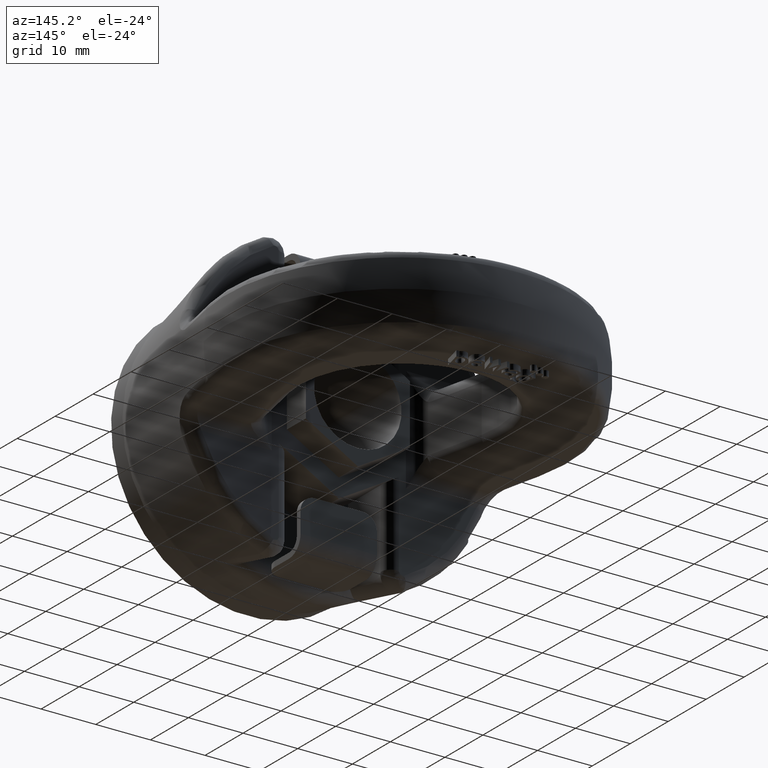
[diagram: clean part render]
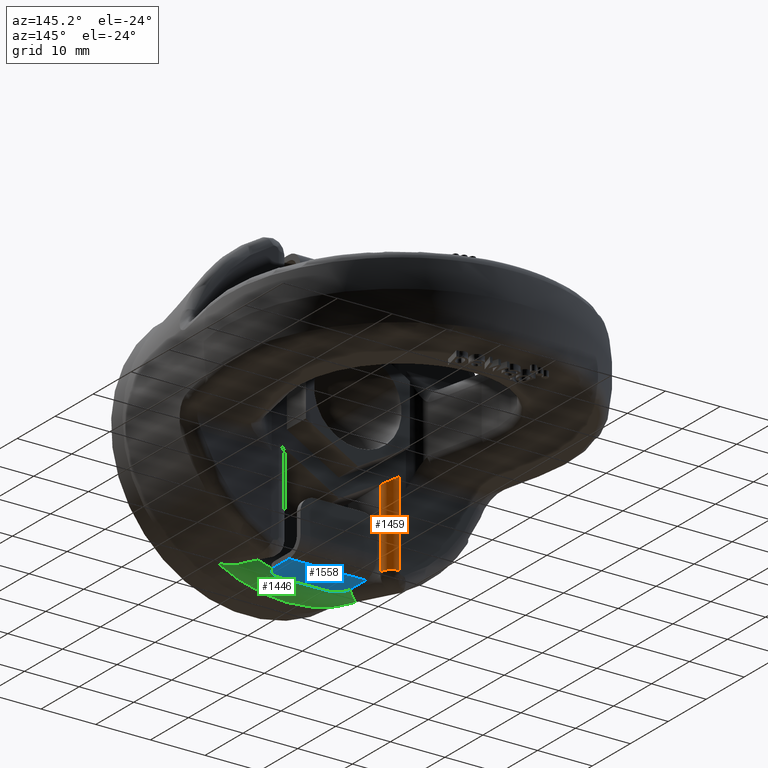
[diagram: same view with three faces highlighted in distinct colors, each labeled with its STEP entity id]
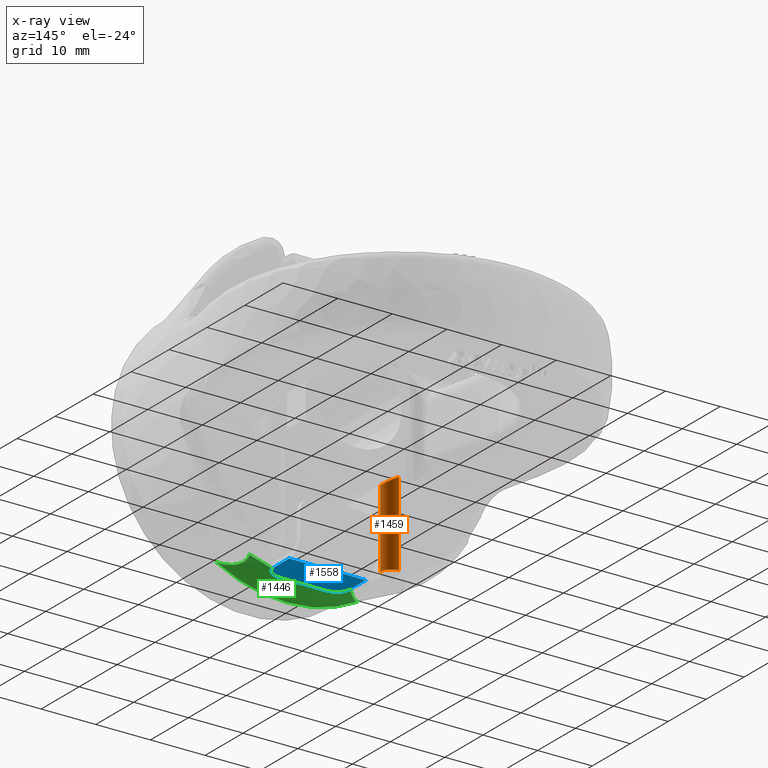
[diagram: x-ray of the same camera — body ghosted, the three highlighted faces saturated]
A machine part, auxiliary view with three faces highlighted in distinct colors.
The next image is the same camera in x-ray (body ghosted, the three faces saturated) — at least one of them is partly hidden behind the body in this view.
Their STEP definitions:

[orange] entity #1459 — the highlighted cylindrical surface (edge-blend (fillet) strip) has radius 2 mm, axis along (0, 0, -1).
#1062=ELLIPSE('',#5245,2.3094010767585,2.);
#1085=CYLINDRICAL_SURFACE('',#5270,2.);
#1226=FACE_OUTER_BOUND('',#1993,.T.);
#1459=ADVANCED_FACE('',(#1226),#1085,.T.);
#1736=CIRCLE('',#5269,2.);
#1993=EDGE_LOOP('',(#3413,#3414,#3415,#3416));
#2149=LINE('',#6741,#2419);
#2267=LINE('',#8392,#2565);
#2419=VECTOR('',#5482,1.);
#2565=VECTOR('',#5850,1.);
#3413=ORIENTED_EDGE('',*,*,#4622,.F.);
#3414=ORIENTED_EDGE('',*,*,#4618,.F.);
#3415=ORIENTED_EDGE('',*,*,#4643,.T.);
#3416=ORIENTED_EDGE('',*,*,#4361,.F.);
#3972=VERTEX_POINT('',#6740);
#3973=VERTEX_POINT('',#6742);
#4137=VERTEX_POINT('',#8391);
#4138=VERTEX_POINT('',#8393);
#4361=EDGE_CURVE('',#3972,#3973,#2149,.T.);
#4618=EDGE_CURVE('',#4137,#4138,#2267,.T.);
#4622=EDGE_CURVE('',#4138,#3972,#1062,.T.);
#4643=EDGE_CURVE('',#4137,#3973,#1736,.T.);
#5245=AXIS2_PLACEMENT_3D('',#8400,#5860,#5861);
#5269=AXIS2_PLACEMENT_3D('',#8620,#5908,#5909);
#5270=AXIS2_PLACEMENT_3D('',#8645,#5910,#5911);
#5482=DIRECTION('',(2.34291072916505E-15,0.,-1.));
#5850=DIRECTION('',(-2.34291072916505E-15,0.,1.));
#5860=DIRECTION('',(0.499999999999997,0.,0.86602540378444));
#5861=DIRECTION('',(0.86602540378444,0.,-0.499999999999997));
#5908=DIRECTION('',(1.12653622278864E-15,-1.73472347597677E-15,1.));
#5909=DIRECTION('',(1.,0.,-1.73472347597681E-15));
#5910=DIRECTION('',(2.34291072916505E-15,0.,-1.));
#5911=DIRECTION('',(-1.,0.,-3.46944695195361E-15));
#6740=CARTESIAN_POINT('',(-11.,24.,-8.08290376865478));
#6741=CARTESIAN_POINT('',(-10.9999999999999,24.,-35.2));
#6742=CARTESIAN_POINT('',(-10.9999999999999,24.,-23.4831392389259));
#8391=CARTESIAN_POINT('',(-8.99999999999994,22.,-23.4831392389259));
#8392=CARTESIAN_POINT('',(-8.99999999999991,22.,-35.2));
#8393=CARTESIAN_POINT('',(-8.99999999999998,22.,-9.23760430703403));
#8400=CARTESIAN_POINT('',(-11.,22.,-8.08290376865478));
#8620=CARTESIAN_POINT('',(-10.9999999999999,22.,-23.4831392389259));
#8645=CARTESIAN_POINT('',(-10.9999999999999,22.,-35.2));

[blue] entity #1558 — the highlighted planar face has unit normal (-0, 0, 1).
#1318=FACE_OUTER_BOUND('',#2099,.T.);
#1558=ADVANCED_FACE('',(#1318),#1675,.F.);
#1675=PLANE('',#5370);
#1768=CIRCLE('',#5368,2.66666666666667);
#1769=CIRCLE('',#5369,2.66666666666667);
#2099=EDGE_LOOP('',(#3850,#3851,#3852,#3853,#3854,#3855));
#2350=LINE('',#9662,#2676);
#2358=LINE('',#9684,#2684);
#2362=LINE('',#9693,#2688);
#2373=LINE('',#9727,#2699);
#2676=VECTOR('',#6175,1.);
#2684=VECTOR('',#6189,1.);
#2688=VECTOR('',#6195,1.);
#2699=VECTOR('',#6234,1.);
#3850=ORIENTED_EDGE('',*,*,#4816,.F.);
#3851=ORIENTED_EDGE('',*,*,#4840,.T.);
#3852=ORIENTED_EDGE('',*,*,#4806,.F.);
#3853=ORIENTED_EDGE('',*,*,#4839,.T.);
#3854=ORIENTED_EDGE('',*,*,#4820,.T.);
#3855=ORIENTED_EDGE('',*,*,#4841,.T.);
#4232=VERTEX_POINT('',#9663);
#4233=VERTEX_POINT('',#9664);
#4242=VERTEX_POINT('',#9683);
#4243=VERTEX_POINT('',#9685);
#4246=VERTEX_POINT('',#9692);
#4247=VERTEX_POINT('',#9694);
#4806=EDGE_CURVE('',#4232,#4233,#2350,.T.);
#4816=EDGE_CURVE('',#4242,#4243,#2358,.T.);
#4820=EDGE_CURVE('',#4247,#4246,#2362,.T.);
#4839=EDGE_CURVE('',#4232,#4247,#2373,.T.);
#4840=EDGE_CURVE('',#4242,#4233,#1768,.T.);
#4841=EDGE_CURVE('',#4246,#4243,#1769,.T.);
#5368=AXIS2_PLACEMENT_3D('',#9729,#6237,#6238);
#5369=AXIS2_PLACEMENT_3D('',#9730,#6239,#6240);
#5370=AXIS2_PLACEMENT_3D('',#9731,#6241,#6242);
#6175=DIRECTION('',(0.,-1.,0.));
#6189=DIRECTION('',(1.,0.,2.34291072916505E-15));
#6195=DIRECTION('',(0.,-1.,0.));
#6234=DIRECTION('',(1.,0.,2.34291072916505E-15));
#6237=DIRECTION('',(2.34291072916505E-15,0.,-1.));
#6238=DIRECTION('',(1.,0.,2.60208521396521E-15));
#6239=DIRECTION('',(2.34291072916505E-15,0.,-1.));
#6240=DIRECTION('',(1.,0.,2.60208521396521E-15));
#6241=DIRECTION('',(-2.34291072916505E-15,0.,1.));
#6242=DIRECTION('',(1.,0.,2.34187669256869E-15));
#9662=CARTESIAN_POINT('',(-6.99999999999994,21.,-25.));
#9663=CARTESIAN_POINT('',(-6.99999999999994,21.,-25.));
#9664=CARTESIAN_POINT('',(-6.99999999999994,17.1666666666667,-25.));
#9683=CARTESIAN_POINT('',(-4.33333333333327,14.5,-25.));
#9684=CARTESIAN_POINT('',(-6.99999999999994,14.5,-25.));
#9685=CARTESIAN_POINT('',(4.33333333333339,14.5,-25.));
#9692=CARTESIAN_POINT('',(7.00000000000006,17.1666666666667,-25.));
#9693=CARTESIAN_POINT('',(7.00000000000006,21.,-25.));
#9694=CARTESIAN_POINT('',(7.00000000000006,21.,-25.));
#9727=CARTESIAN_POINT('',(-6.99999999999994,21.,-25.));
#9729=CARTESIAN_POINT('',(-4.33333333333327,17.1666666666667,-25.));
#9730=CARTESIAN_POINT('',(4.33333333333339,17.1666666666667,-25.));
#9731=CARTESIAN_POINT('',(-6.99999999999994,21.,-25.));

[green] entity #1446 — the highlighted toroidal blend (fillet) surface has major radius 23.9029 mm and minor (blend) radius 2.6667 mm.
#1019=TOROIDAL_SURFACE('',#5249,23.9029365122576,2.66666666666667);
#1213=FACE_OUTER_BOUND('',#1980,.T.);
#1446=ADVANCED_FACE('',(#1213),#1019,.T.);
#1684=CIRCLE('',#5113,26.51391404643);
#1726=CIRCLE('',#5240,23.9029365122576);
#1980=EDGE_LOOP('',(#3359,#3360,#3361,#3362));
#3359=ORIENTED_EDGE('',*,*,#4625,.T.);
#3360=ORIENTED_EDGE('',*,*,#4612,.F.);
#3361=ORIENTED_EDGE('',*,*,#4627,.T.);
#3362=ORIENTED_EDGE('',*,*,#4327,.F.);
#3941=VERTEX_POINT('',#6602);
#3942=VERTEX_POINT('',#6604);
#4132=VERTEX_POINT('',#8370);
#4133=VERTEX_POINT('',#8372);
#4327=EDGE_CURVE('',#3941,#3942,#1684,.T.);
#4612=EDGE_CURVE('',#4132,#4133,#1726,.T.);
#4625=EDGE_CURVE('',#3941,#4133,#5005,.T.);
#4627=EDGE_CURVE('',#4132,#3942,#5007,.T.);
#5005=B_SPLINE_CURVE_WITH_KNOTS('',3,(#8423,#8424,#8425,#8426,#8427,#8428,
#8429,#8430),.UNSPECIFIED.,.F.,.F.,(4,2,2,4),(0.,0.5,0.75,1.),
 .UNSPECIFIED.);
#5007=B_SPLINE_CURVE_WITH_KNOTS('',3,(#8462,#8463,#8464,#8465,#8466,#8467,
#8468,#8469),.UNSPECIFIED.,.F.,.F.,(4,2,2,4),(0.,0.25,0.5,1.),
 .UNSPECIFIED.);
#5113=AXIS2_PLACEMENT_3D('',#6603,#5436,#5437);
#5240=AXIS2_PLACEMENT_3D('',#8371,#5843,#5844);
#5249=AXIS2_PLACEMENT_3D('',#8482,#5868,#5869);
#5436=DIRECTION('',(-9.6373526443156E-17,-1.,-2.25794569111142E-31));
#5437=DIRECTION('',(-1.,6.54269102984583E-17,-2.34291072916505E-15));
#5843=DIRECTION('',(9.6373526443156E-17,1.,2.25794569111142E-31));
#5844=DIRECTION('',(1.,-7.25736553367504E-17,2.34291072916505E-15));
#5868=DIRECTION('',(9.6373526443156E-17,1.,2.25794569111142E-31));
#5869=DIRECTION('',(1.,-6.52897773555324E-17,2.34291072916505E-15));
#6602=CARTESIAN_POINT('',(-12.9410458438746,10.291201036603,-23.1412396065597));
#6603=CARTESIAN_POINT('',(1.09193291963228E-13,10.291201036603,2.55830135293499E-28));
#6604=CARTESIAN_POINT('',(12.9410458438747,10.291201036603,-23.1412396065598));
#8370=CARTESIAN_POINT('',(9.06938438207252,13.5,-22.1155294044533));
#8371=CARTESIAN_POINT('',(1.56155495688287E-13,13.5,3.65858386266174E-28));
#8372=CARTESIAN_POINT('',(-9.06938438207241,13.5,-22.1155294044532));
#8423=CARTESIAN_POINT('',(-12.9410458438746,10.291201036603,-23.1412396065598));
#8424=CARTESIAN_POINT('',(-12.3428631207271,10.9164946197192,-23.624511002611));
#8425=CARTESIAN_POINT('',(-11.6184958968358,11.5944465236368,-23.9022910383546));
#8426=CARTESIAN_POINT('',(-10.4840932195757,12.5600879462129,-23.7619689707074));
#8427=CARTESIAN_POINT('',(-10.1013961021657,12.8696687075284,-23.615777402223));
#8428=CARTESIAN_POINT('',(-9.4413996488937,13.3479537347876,-23.0436037539044));
#8429=CARTESIAN_POINT('',(-9.18049634866807,13.5,-22.6061875133211));
#8430=CARTESIAN_POINT('',(-9.06938438207241,13.5,-22.1155294044532));
#8462=CARTESIAN_POINT('',(9.06938438207252,13.5,-22.1155294044533));
#8463=CARTESIAN_POINT('',(9.18049634866818,13.5,-22.6061875133212));
#8464=CARTESIAN_POINT('',(9.44139964889383,13.3479537347876,-23.0436037539044));
#8465=CARTESIAN_POINT('',(10.1013961021658,12.8696687075284,-23.6157774022231));
#8466=CARTESIAN_POINT('',(10.4840932195758,12.5600879462129,-23.7619689707075));
#8467=CARTESIAN_POINT('',(11.618495896836,11.5944465236368,-23.9022910383546));
#8468=CARTESIAN_POINT('',(12.342863121612,10.9164946207572,-23.6245110023632));
#8469=CARTESIAN_POINT('',(12.9410458438747,10.291201036603,-23.1412396065598));
#8482=CARTESIAN_POINT('',(1.55898499617772E-13,10.8333333333333,3.65256267415211E-28));